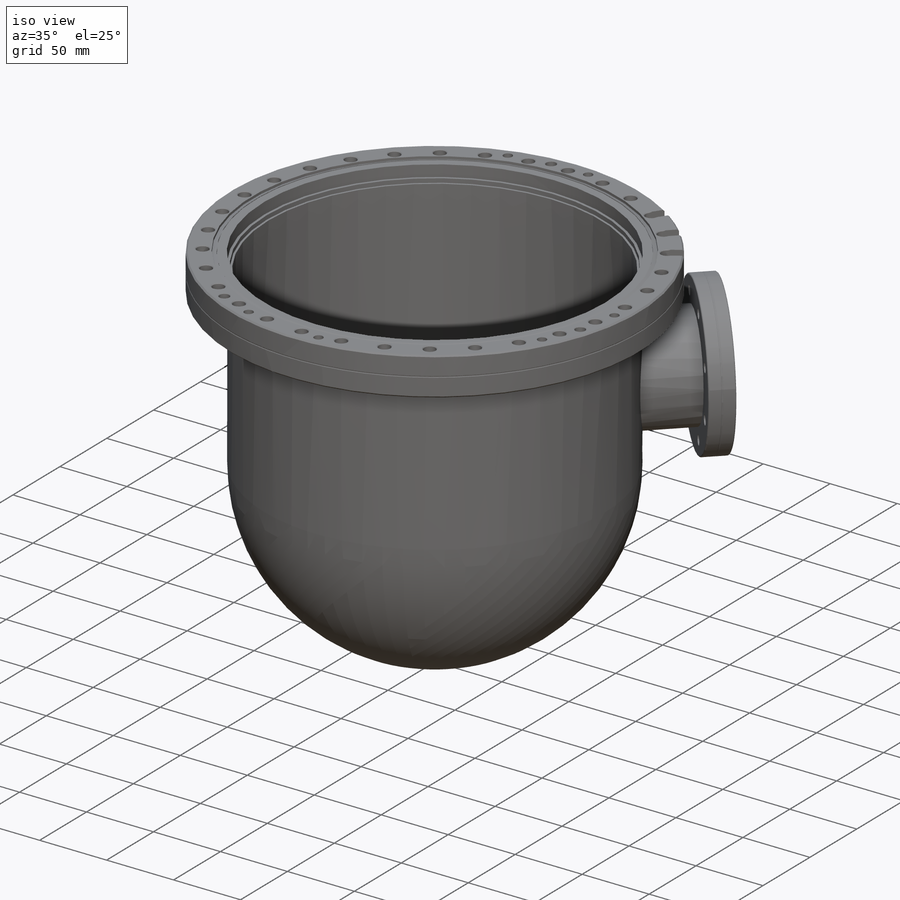
[diagram: iso view]
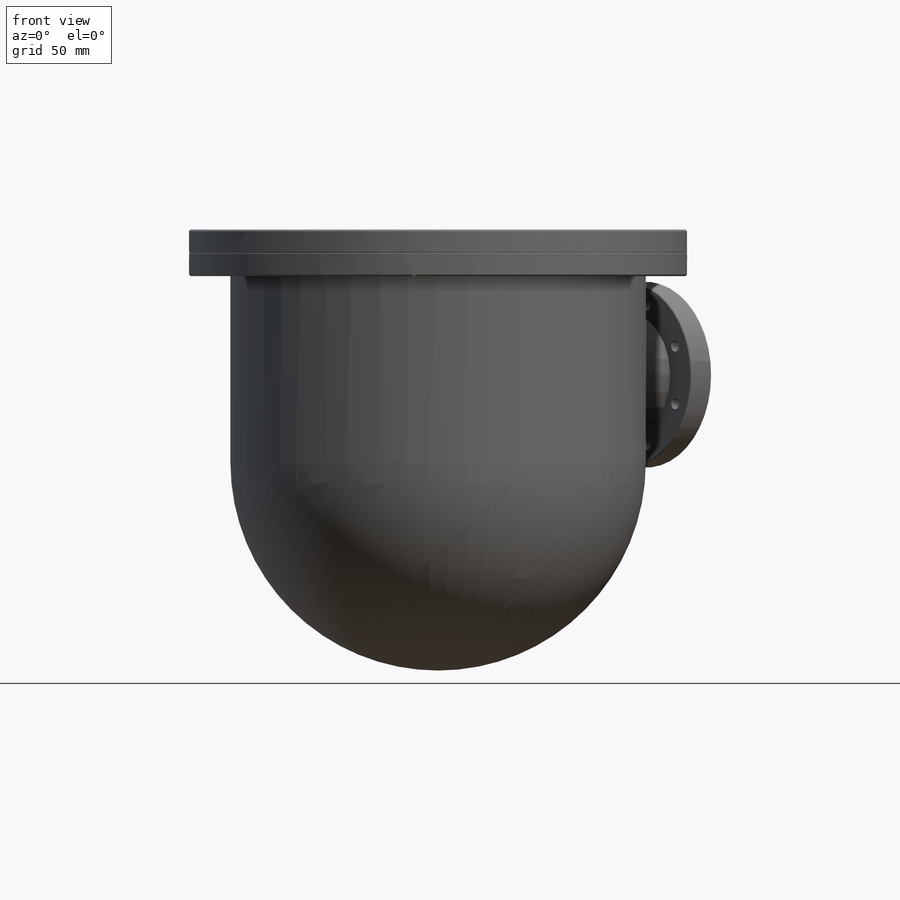
[diagram: front view]
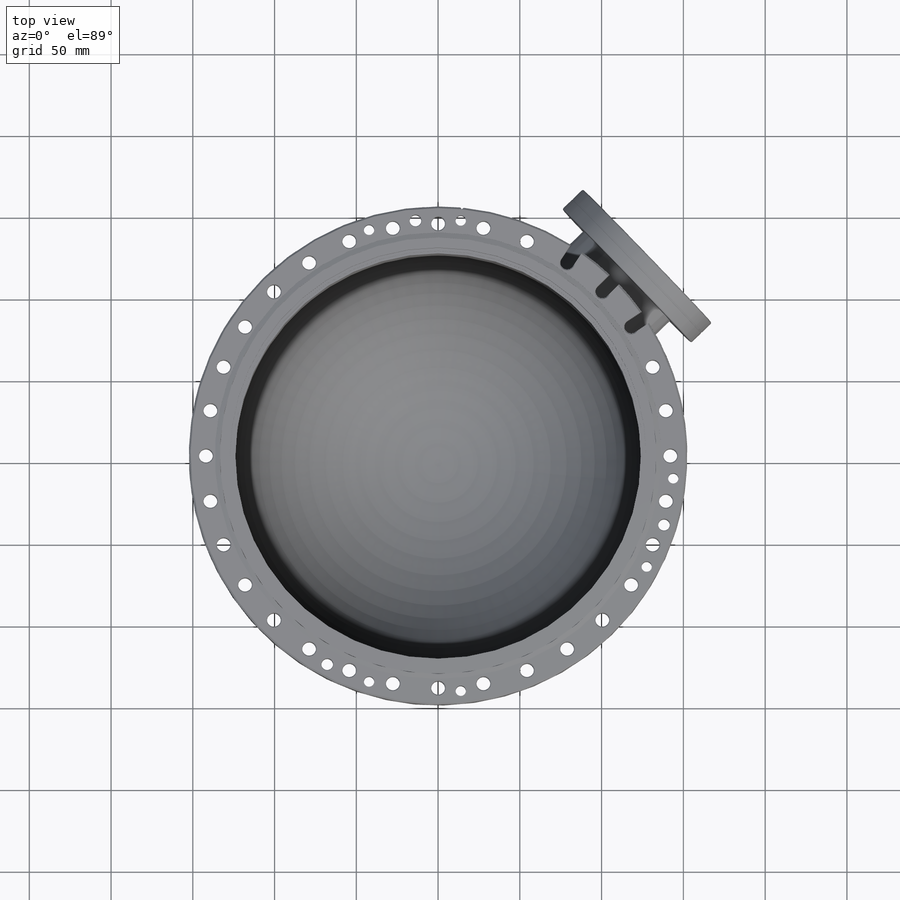
[diagram: top view]
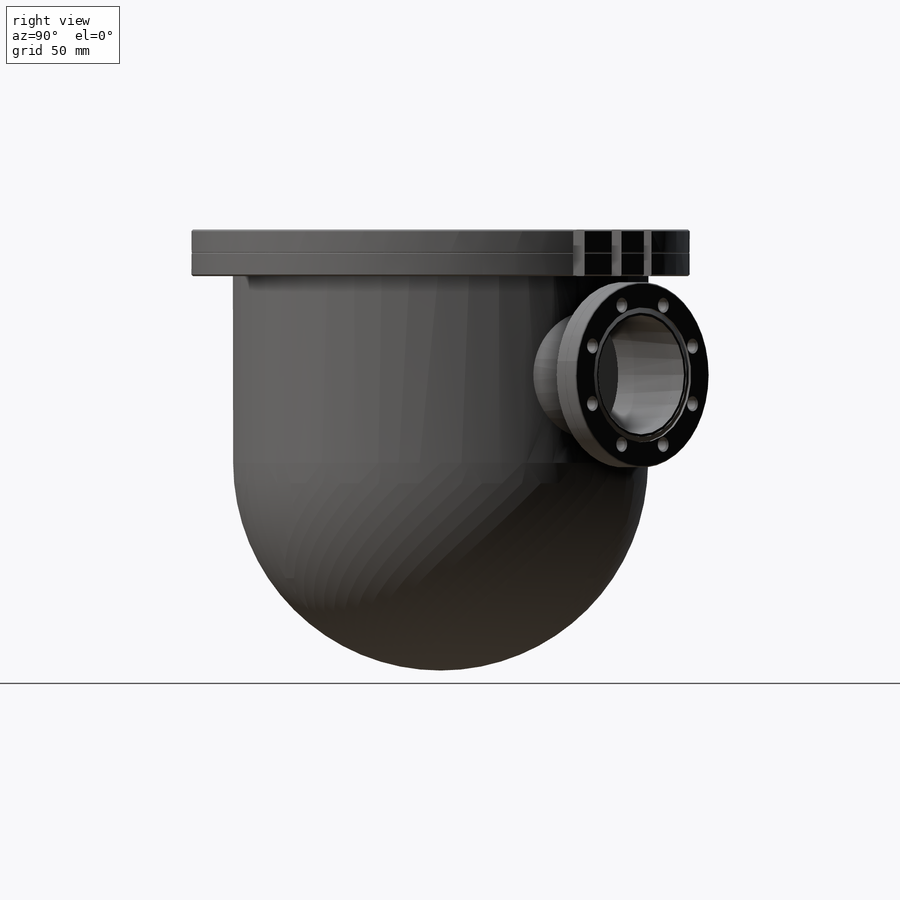
[diagram: right view]
SOLIDWORKS PART (.sldprt)
format: sldprt  version: not decoded by parser v0  size: 1,178,112 bytes
history: native  units: mm
features: sketch x15, plane x6, cut_extrude x5, revolve x3, pattern_circular x3, hole x3, chamfer x2, material x1, extrude x1, thread x1, fillet x1 (+12 scaffold rows collapsed)
feature tree (53):
  scaffold x12  (default folders/planes/origin — collapsed)
  material  "304 SSTL"
  plane  "XY"
  plane  "XZ"
  plane  "YZ"
  sketch  "Sketch1"  dims[c1.D11=1.5748mm c1.D13=1.5748mm c1.D1=304.8mm c1.D2=28.575mm c1.D3=356.108mm c1.D4=14.224mm c1.D5=349.25mm c2.D4=12.7mm c2.D6=371.5004mm c2.D7=3.0226mm c2.D8=~5.18127mm c3.D8=70.0deg c3.D9=1.8034mm c3.D10=1.1684mm c3.D12=14.2875mm c3.D13=420.2684mm c3.D3=3.429mm c4.D13=0.5842mm c4.D6=21.0312mm c4.D5=34.925mm c4.D3=31.496mm c5.D6=15.875mm c5.D5=3.429mm c5.D3=153.162mm c6.D5=27.0002mm c6.D14=~3.642591mm c6.D15=~4.450685mm c6.D16=25.4762mm c6.D17=~4.810991mm c7.D14=6.477mm c7.D15=9.652mm c7.D17=26.9875mm c7.D3=25.019mm c7.D16=1.524mm c8.D3=1.8415mm c8.D5=0.508mm c9.D3=250.825mm c9.D5=254.508mm]
  revolve  "nor-cal-1200-1000N CF FLANGE"  Angle=360deg
  sketch  "Sketch2"  dims[c1.D1=8.4328mm c1.D2=141.9987mm c1.D3=141.9987mm c2.D3=0.0deg]
  cut_extrude  ".332 DIA SUPPLIED WITH FLANGE"  [1 undecoded]
  chamfer  "Chamfer4"  Distance=0.508mm Angle=45deg
  pattern_circular  "CirPattern1"  Count=32 Angle=360deg
  sketch  "Sketch4"  dims[c1.D3=6.35mm c1.D4=9.525mm c1.D1=6.35mm c2.D3=9.525mm c2.D2=9.525mm c3.D3=6.35mm c3.D5=6.35mm c3.D6=9.525mm c3.D7=~617.148033mm c3.D10=~11.445834mm c3.D4=123.952mm c3.D1=152.4mm c3.D2=6.35mm c4.D5=3.175mm c4.D4=223.52mm c4.D1=3.048mm c5.D4=218.44mm c5.D6=187.325mm c6.D4=254.0mm c6.D2=127.0mm c6.D3=3.048mm c6.D9=0.0254mm c6.D10=3.175mm c7.D2=254.0mm c7.D8=0.0254mm c7.D3=3.048mm c7.D4=3.048mm c8.D8=0.0254mm]
  revolve  "nor-cal SST-1000 10" tubing + nor-call R-HS-00010D"  Angle=360deg cosMaterialEX=10009317 cosMaterialNUXY=330mm cosMaterialGXY=3771626700.0mm cosMaterialALPX=0.013333mm cosMaterialDENS=97.543705mm cosMaterialKX=2.274387mm cosMaterialC=310.55901mm Units=1000mm AnalysisType=0mm MeshType=0mm cosMaterialSIGYLD=7999982.8mm cosMaterialSIGXT=17999943mm cosMaterialSIGXC=0mm sMaterialName=0mm cosFMVItemName=0mm
  plane  "Plane3"
  plane  "Plane1"
  plane  "Plane4"  Offset=168.275mm
  sketch  "Sketch5"  dims[D1=76.2mm D2=88.9mm D3=1.651mm]
  extrude  "nor-cal SST-300 3" tubing"  Depth=73.66mm
  sketch  "Sketch6"  dims[c1.D12=1.5748mm c1.D14=1.5748mm c1.D1=63.754mm c1.D2=82.55mm c1.D3=1.6002mm c1.D4=1.6002mm c1.D5=12.7mm c2.D3=1.8288mm c2.D5=9.525mm c2.D6=72.898mm c2.D7=3.175mm c3.D5=9.525mm c3.D4=~3.578156mm c4.D4=70.0deg c4.D7=1.1684mm c4.D8=76.1492mm c4.D9=50.8mm c4.D1=76.454mm c5.D9=17.4498mm c5.D10=17.4498mm c5.D11=113.538mm c5.D13=8.7249mm c5.D14=114.7064mm c5.D15=0.254mm c5.D16=1.778mm c5.D6=0.381mm c6.D15=72.898mm c6.D5=7.9502mm c6.D6=0.0254mm c6.D10=~0.027874mm c7.D5=9.525mm c7.D10=0.0254mm]
  revolve  "nor-cal 450-250nt modified for 3" tube, cf flange"  Angle=360deg
  sketch  "Sketch25"  dims[D1=68.58mm]
  hole  "5/16-24 Tapped Hole1 supplied with flange"  [1 undecoded]
  sketch  "Sketch28"  dims[c1.D1=46.0375mm c1.D2=~32.136531mm c2.D2=22.41deg]
  thread  "Hole Thread3"  Diameter=15.875mm  [1 undecoded]
  sketch  "Sketch27"  dims[hole-wizard template sketch: 40 standard entries collapsed; hole parameters kept: c13.Tap Drill Depth=19.05mm c13.Near C'Sink Dia.=9.2075mm c13.D4=~33.297463mm c13.Near C'Sink Angle=90.0deg c14.D5=~14.816244mm c14.Drill Angle=118.0deg]
  pattern_circular  "CirPattern4"  Count=8 Angle=45deg ID=525489380000.0mm bsiID=0
  chamfer  "Chamfer3"  Distance=1.016mm Angle=45deg
  sketch  "Sketch14"  dims[c1.D2=419.1mm c1.D1=5.7057mm c2.D1=45.0deg c2.D2=1.016mm c2.D3=3.81mm c2.D4=~96.560945mm c3.D4=84.0deg c3.D5=~103.169355mm c4.D4=~206.226582mm c5.D4=5.5deg]
  cut_extrude  "Cut-Extrude2"  Depth=30.48mm
  cut_extrude  "Extrude2"  Depth=101.6mm
  sketch  "Sketch29"  dims[c1.D1=~27.267733mm c2.D1=~0.119619deg c3.D1=25.4mm]
  cut_extrude  "Extrude3"  [1 undecoded]
  sketch  "Sketch30"  dims[D1=152.4mm]
  cut_extrude  "Extrude4"  Depth=1.016mm
  fillet  "Fillet1"  Radius=1.016mm
  pattern_circular  "CirPattern5"  Count=32 Angle=11.25deg
  hole  "1/4 Clearance Hole2"  Diameter=7.14248mm Depth=28.87896mm
  sketch  "Sketch31"  dims[c1.D1=~142.987892mm c1.D2=144.4625mm c2.D2=112.5deg c2.D3=~172.303108mm c3.D3=168.5deg c3.D4=~132.949136mm c4.D4=101.0deg]
  sketch  "Sketch32"  dims[Thru Hole Dia.=~7.14248mm Thru Hole Depth=~28.87896mm Far C'Sink Dia.=~8.41248mm Far C'Sink Angle=90.0deg]
  hole  "1/4-20 Tapped Hole1"  Diameter=6.35mm Depth=28.87896mm
  sketch  "Sketch34"  dims[c1.D1=~2.238312mm c1.D2=144.3355mm c2.D2=22.5deg c2.D3=144.3355mm c3.D3=5.5deg c3.D4=~213.718339mm c4.D4=84.5deg c4.D5=~138.391726mm c5.D5=22.5deg c5.D6=~138.526146mm c6.D6=22.5deg c6.D7=~213.718339mm c7.D7=84.5deg c7.D8=~139.270235mm c8.D8=11.25deg]
  sketch  "Sketch33"  dims[hole-wizard template sketch: 60 standard entries collapsed; hole parameters kept: c18.Thru Tap Drill Depth=~28.87896mm]
decode coverage: 31 of 34 modeling features carry decoded parameters
note: ~ marks probable driven/reference dimensions
note: 4 parameter values undecoded
summary: no parameter record found for 3 features
note: suppression state not decoded; provenance and decode notes live in map.json
